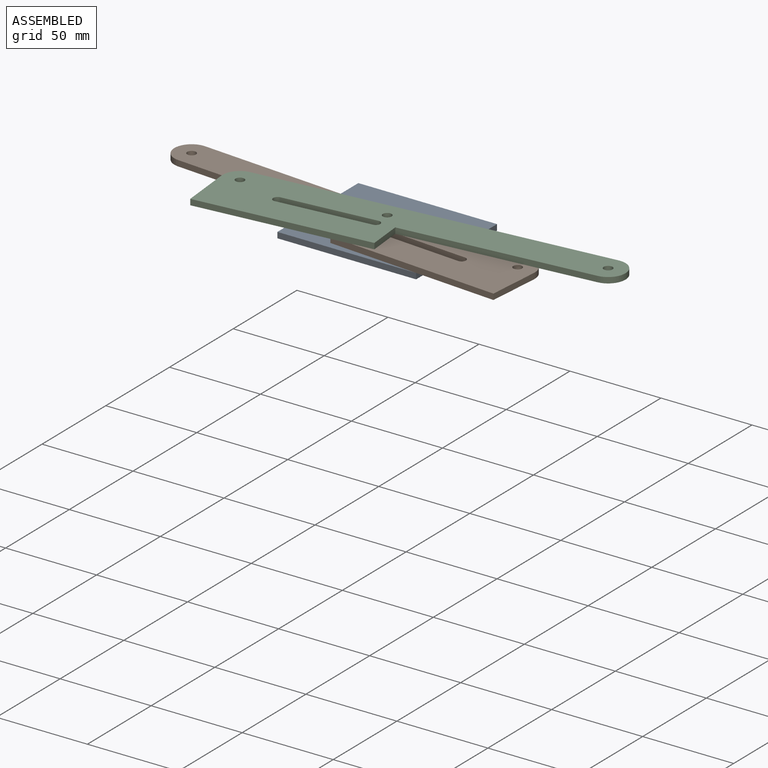
[diagram: assembled view]
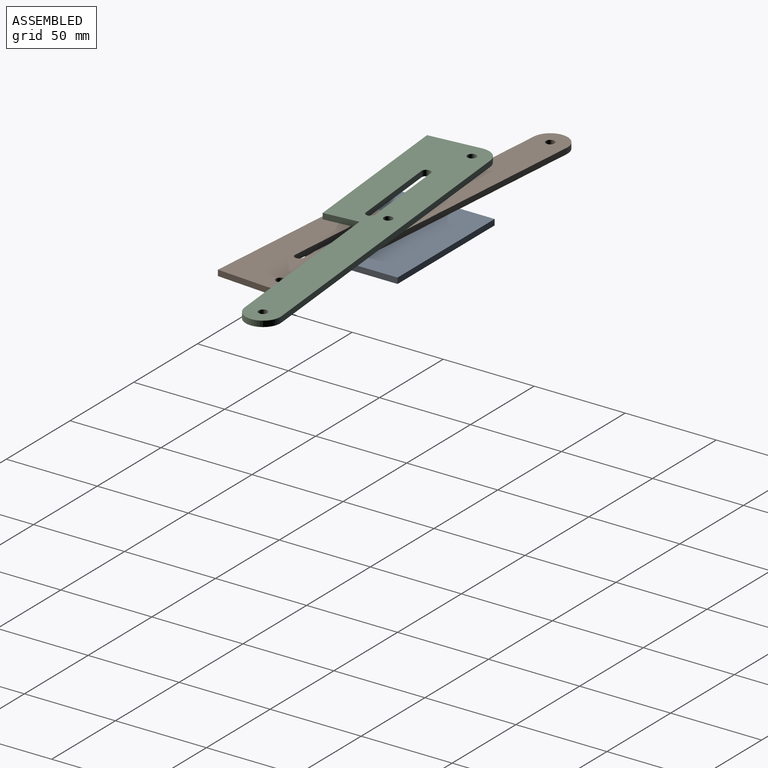
[diagram: assembled view, second angle]
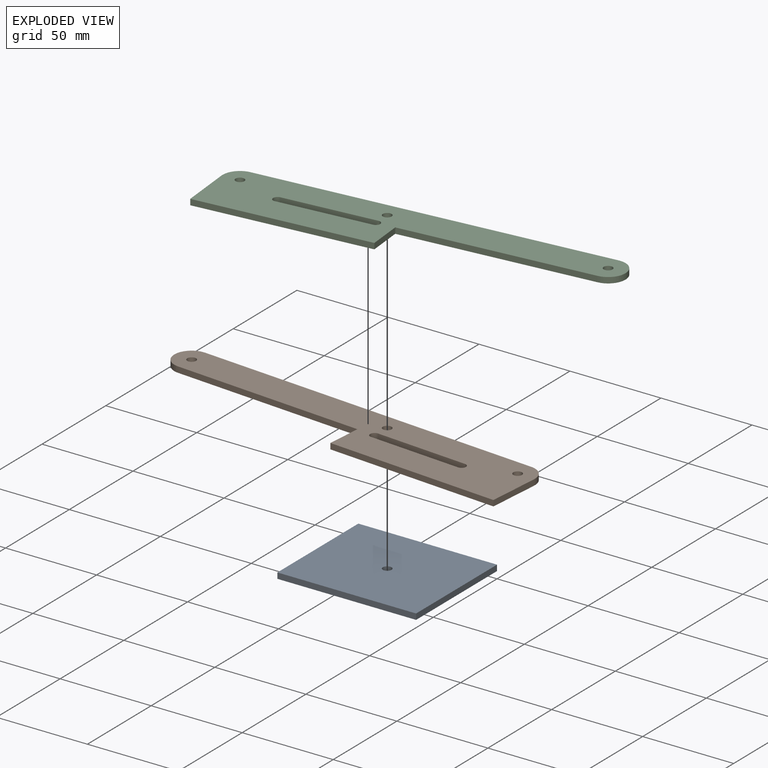
[diagram: exploded view]
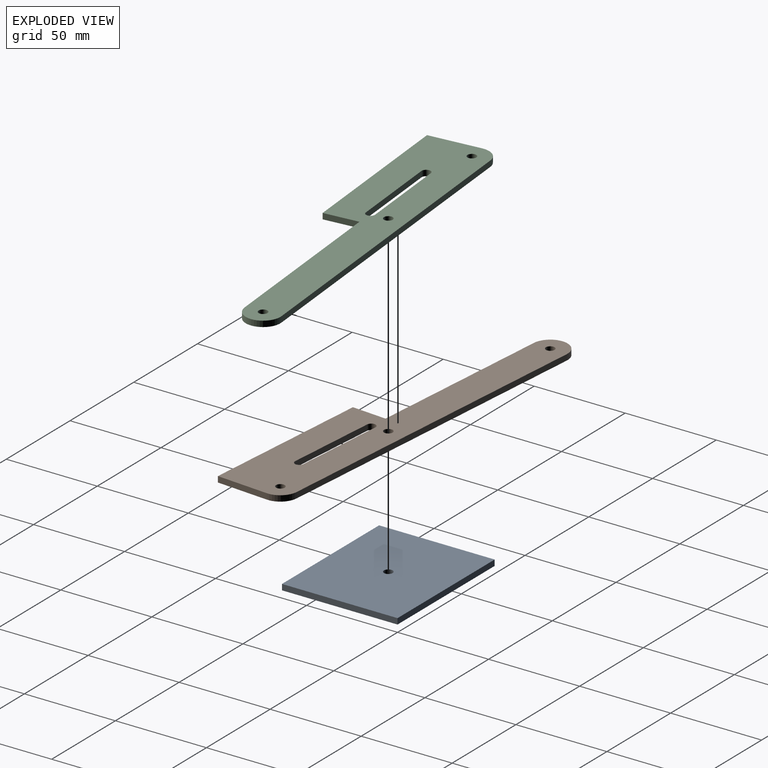
[diagram: exploded view, second angle]
ASSEMBLY  parts=3 mates=2
PART A: 7 faces, bbox 76.2x63.5x3.2 mm
  f0: plane 76.2x3.18mm, normal (0,-1,0), area 241.9mm2, adj f1,f3,f5,f6
  f1: plane 63.5x3.18mm, normal (1,0,0), area 201.6mm2, adj f0,f2,f5,f6
  f2: plane 76.2x3.18mm, normal (0,1,0), area 241.9mm2, adj f1,f3,f5,f6
  f3: plane 63.5x3.18mm, normal (-1,0,0), area 201.6mm2, adj f0,f2,f5,f6
  f4: cylinder r=2.41mm len=4.83mm, axis (0,0,-1), area 48.1mm2, adj f5,f6
  f5: plane 76.2x63.5mm, normal (0,0,1), area 4820.4mm2, adj f0,f1,f2,f3,f4
  f6: plane 76.2x63.5mm, normal (0,0,-1), area 4820.4mm2, adj f0,f1,f2,f3,f4
PART B: 16 faces, bbox 209.5x39.1x3.2 mm
  f0: plane 95.26x3.18mm, normal (-0.01,-1,0), area 302.4mm2, adj f1,f13,f14,f15
  f1: plane 28.57x3.18mm, normal (1,-0.01,0), area 90.7mm2, adj f0,f2,f14,f15
  f2: cylinder r=9.53mm len=9.57mm, axis (0,0,1), area 47.5mm2, adj f1,f3,f14,f15
  f3: plane 190.72x3.18mm, normal (0.01,1,0), area 605.5mm2, adj f2,f4,f14,f15
  f4: cylinder r=9.53mm len=19.05mm, axis (0,0,1), area 94.2mm2, adj f3,f5,f14,f15
  f5: plane 104.77x3.18mm, normal (-0.01,-1,0), area 332.7mm2, adj f4,f13,f14,f15
  f6: plane 50.8x3.18mm, normal (0.01,1,0), area 161.3mm2, adj f7,f9,f14,f15
  f7: cylinder r=2.41mm len=4.83mm, axis (0,0,1), area 24.1mm2, adj f6,f8,f14,f15
  f8: plane 50.8x3.18mm, normal (-0.01,-1,0), area 161.3mm2, adj f7,f9,f14,f15
  f9: cylinder r=2.41mm len=4.83mm, axis (0,0,1), area 24.1mm2, adj f6,f8,f14,f15
  f10: cylinder r=2.41mm len=4.83mm, axis (0,0,1), area 48.1mm2, adj f14,f15
  f11: cylinder r=2.41mm len=4.83mm, axis (0,0,1), area 48.1mm2, adj f14,f15
  f12: cylinder r=2.41mm len=4.83mm, axis (0,0,1), area 48.1mm2, adj f14,f15
  f13: plane 19.05x3.18mm, normal (-1,0.01,0), area 60.5mm2, adj f0,f5,f14,f15
  f14: plane 209.53x39.11mm, normal (0,0,-1), area 5429.2mm2, adj f0,f1,f2,f3,f4,f5,f6,f7
  f15: plane 209.53x39.11mm, normal (0,0,1), area 5429.2mm2, adj f0,f1,f2,f3,f4,f5,f6,f7
PART C: 16 faces, bbox 209.7x38.5x3.2 mm
  f0: plane 95.26x3.18mm, normal (0.01,1,0), area 302.4mm2, adj f1,f13,f14,f15
  f1: plane 28.57x3.18mm, normal (1,-0.01,0), area 90.7mm2, adj f0,f2,f14,f15
  f2: cylinder r=9.53mm len=9.57mm, axis (0,0,1), area 47.5mm2, adj f1,f3,f14,f15
  f3: plane 190.72x3.18mm, normal (-0.01,-1,0), area 605.5mm2, adj f2,f4,f14,f15
  f4: cylinder r=9.53mm len=19.05mm, axis (0,0,1), area 94.2mm2, adj f3,f5,f14,f15
  f5: plane 104.77x3.18mm, normal (0.01,1,0), area 332.7mm2, adj f4,f13,f14,f15
  f6: plane 50.8x3.18mm, normal (-0.01,-1,0), area 161.3mm2, adj f7,f9,f14,f15
  f7: cylinder r=2.41mm len=4.83mm, axis (0,0,1), area 24.1mm2, adj f6,f8,f14,f15
  f8: plane 50.8x3.18mm, normal (0.01,1,0), area 161.3mm2, adj f7,f9,f14,f15
  f9: cylinder r=2.41mm len=4.83mm, axis (0,0,1), area 24.1mm2, adj f6,f8,f14,f15
  f10: cylinder r=2.41mm len=4.83mm, axis (0,0,1), area 48.1mm2, adj f14,f15
  f11: cylinder r=2.41mm len=4.83mm, axis (0,0,1), area 48.1mm2, adj f14,f15
  f12: cylinder r=2.41mm len=4.83mm, axis (0,0,1), area 48.1mm2, adj f14,f15
  f13: plane 19.05x3.18mm, normal (-1,0.01,0), area 60.5mm2, adj f0,f5,f14,f15
  f14: plane 209.68x38.53mm, normal (0,0,-1), area 5429.2mm2, adj f0,f1,f2,f3,f4,f5,f6,f7
  f15: plane 209.68x38.53mm, normal (0,0,1), area 5429.2mm2, adj f0,f1,f2,f3,f4,f5,f6,f7
PLACE A t=(-63.5,-31.75,0)mm
PLACE B rot(axis=(0,0,-1),4.3deg) t=(44.91,54.11,6.35)mm
PLACE C rot(axis=(0,0,-1),174.3deg) t=(-128.43,-57.38,9.53)mm
MATE revolute B.f11 <-> A.f4  axis (0,0,-1) through (-38.1,-31.75,3.18)mm
MATE revolute B.f11 <-> C.f11  axis (0,0,1) through (-38.1,-31.75,6.35)mm
